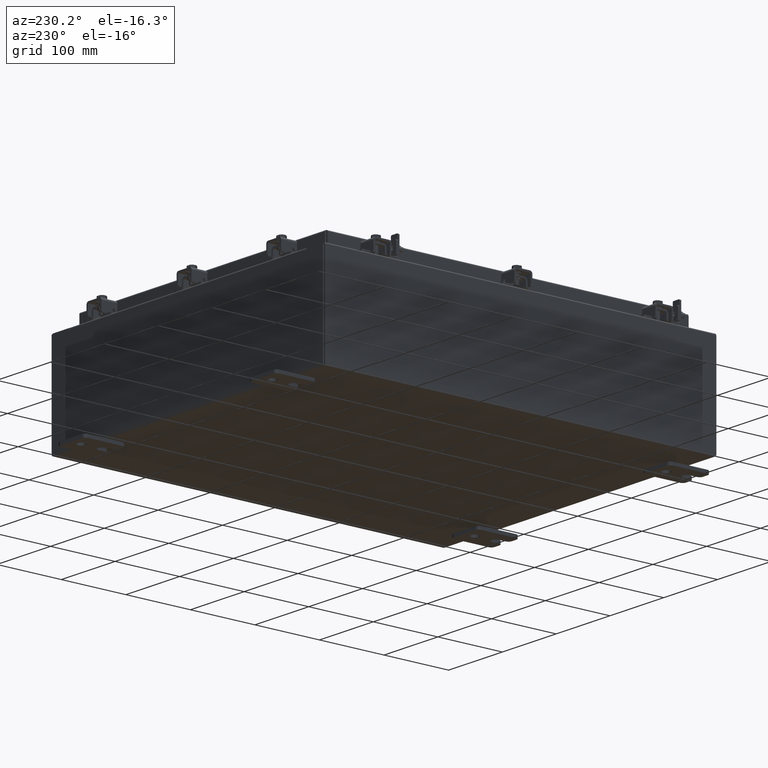
[diagram: clean part render]
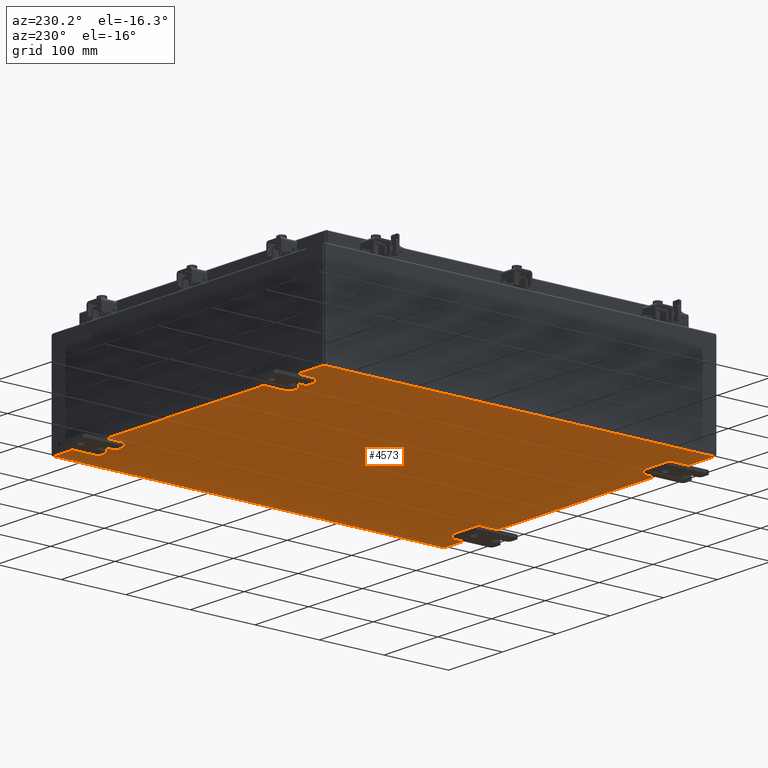
[diagram: same view with one face highlighted and labeled with its STEP entity id]
A machine part, auxiliary view. The second image highlights one B-rep face of the part: STEP entity #4573.
In plain terms, the highlighted planar face has unit normal (0, 0, -1).
Its self-contained STEP definition (entity closure, byte-faithful):
#1042 = CARTESIAN_POINT ( 'NONE',  ( -9.912300000000000100, -11.92530000000000000, -0.07469999999999994700 ) ) ;
#1240 = DIRECTION ( 'NONE',  ( -0.0000000000000000000, 1.000000000000000000, -0.0000000000000000000 ) ) ;
#2940 = VECTOR ( 'NONE', #16057, 39.37007874015748100 ) ;
#2947 = DIRECTION ( 'NONE',  ( -1.000000000000000000, -0.0000000000000000000, -0.0000000000000000000 ) ) ;
#3058 = CARTESIAN_POINT ( 'NONE',  ( -10.00000000000000000, 11.92530000000000000, -0.07470000000000000300 ) ) ;
#4573 = ADVANCED_FACE ( 'NONE', ( #16221 ), #5981, .T. ) ;
#4581 = LINE ( 'NONE', #1042, #17332 ) ;
#4852 = EDGE_CURVE ( 'NONE', #6031, #5234, #17056, .T. ) ;
#5046 = EDGE_CURVE ( 'NONE', #15682, #5234, #4581, .T. ) ;
#5234 = VERTEX_POINT ( 'NONE', #19764 ) ;
#5580 = DIRECTION ( 'NONE',  ( -1.000000000000000000, 0.0000000000000000000, -0.0000000000000000000 ) ) ;
#5594 = DIRECTION ( 'NONE',  ( 0.0000000000000000000, 0.0000000000000000000, -1.000000000000000000 ) ) ;
#5981 = PLANE ( 'NONE',  #16645 ) ;
#6031 = VERTEX_POINT ( 'NONE', #16658 ) ;
#6038 = ORIENTED_EDGE ( 'NONE', *, *, #5046, .T. ) ;
#6062 = CARTESIAN_POINT ( 'NONE',  ( 9.912300000000000100, -11.92530000000000000, -0.07470000000000000300 ) ) ;
#6157 = CARTESIAN_POINT ( 'NONE',  ( 0.0000000000000000000, 0.0000000000000000000, -0.07470000000000000300 ) ) ;
#6662 = DIRECTION ( 'NONE',  ( 1.000000000000000000, 0.0000000000000000000, 0.0000000000000000000 ) ) ;
#10345 = EDGE_LOOP ( 'NONE', ( #20908, #6038, #10642, #20339 ) ) ;
#10642 = ORIENTED_EDGE ( 'NONE', *, *, #4852, .F. ) ;
#12813 = VECTOR ( 'NONE', #6662, 39.37007874015748100 ) ;
#13347 = LINE ( 'NONE', #20496, #12813 ) ;
#13746 = CARTESIAN_POINT ( 'NONE',  ( -9.912300000000000100, -11.92529999999999800, -0.07469999999999994700 ) ) ;
#14290 = CARTESIAN_POINT ( 'NONE',  ( 9.912300000000000100, 11.92530000000000000, -0.07469999999999994700 ) ) ;
#15205 = EDGE_CURVE ( 'NONE', #6031, #21660, #16794, .T. ) ;
#15682 = VERTEX_POINT ( 'NONE', #13746 ) ;
#15941 = VECTOR ( 'NONE', #2947, 39.37007874015748100 ) ;
#16057 = DIRECTION ( 'NONE',  ( -0.0000000000000000000, -1.000000000000000000, -0.0000000000000000000 ) ) ;
#16221 = FACE_OUTER_BOUND ( 'NONE', #10345, .T. ) ;
#16645 = AXIS2_PLACEMENT_3D ( 'NONE', #6157, #5594, #5580 ) ;
#16658 = CARTESIAN_POINT ( 'NONE',  ( 9.912300000000000100, 11.92529999999999800, -0.07469999999999994700 ) ) ;
#16794 = LINE ( 'NONE', #14290, #2940 ) ;
#17056 = LINE ( 'NONE', #3058, #15941 ) ;
#17332 = VECTOR ( 'NONE', #1240, 39.37007874015748100 ) ;
#19764 = CARTESIAN_POINT ( 'NONE',  ( -9.912300000000000100, 11.92530000000000000, -0.07470000000000000300 ) ) ;
#20339 = ORIENTED_EDGE ( 'NONE', *, *, #15205, .T. ) ;
#20496 = CARTESIAN_POINT ( 'NONE',  ( -10.00000000000000000, -11.92530000000000000, -0.07470000000000000300 ) ) ;
#20591 = EDGE_CURVE ( 'NONE', #15682, #21660, #13347, .T. ) ;
#20908 = ORIENTED_EDGE ( 'NONE', *, *, #20591, .F. ) ;
#21660 = VERTEX_POINT ( 'NONE', #6062 ) ;